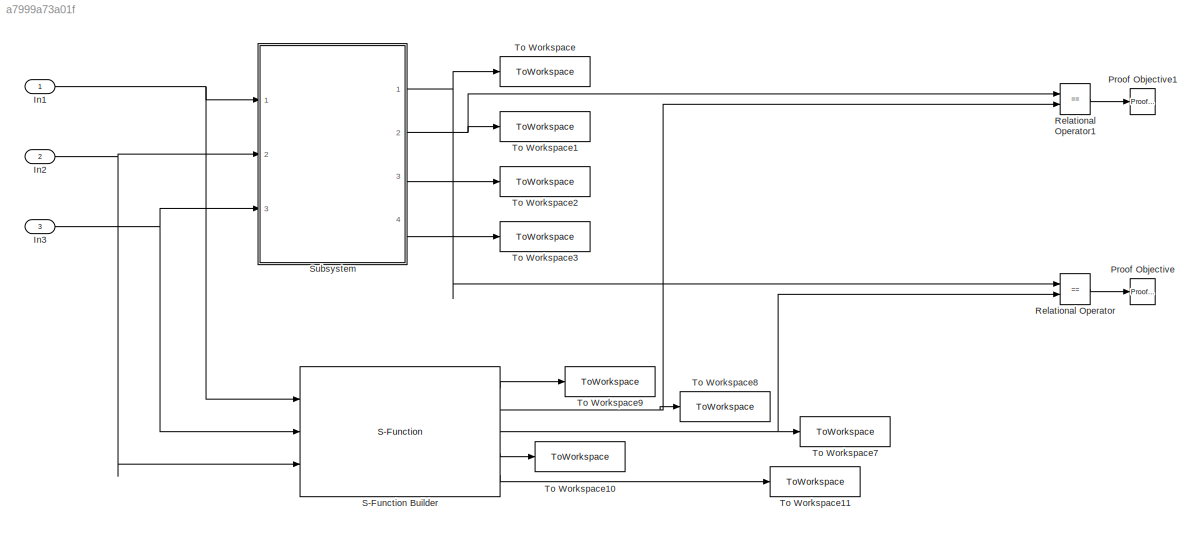
MODEL slx_a7999a73a01f
KIND model
CONFIG AbsTol = auto
CONFIG EnableMultiTasking = off
CONFIG FixedStep = auto
CONFIG MaxStep = auto
CONFIG MinStep = auto
CONFIG RelTol = 1e-3
CONFIG SampleTimeConstraint = Unconstrained
CONFIG Solver = FixedStepAuto
CONFIG SolverName = FixedStepAuto
CONFIG StartTime = 0.0
CONFIG StopTime = 30
BLOCK [Inport] In1
  IconDisplay = Port number
  OutDataTypeStr = boolean
BLOCK [Inport] In2
  IconDisplay = Port number
  OutDataTypeStr = int32
  OutMax = 4
  OutMin = 1
  Port = 2
BLOCK [Inport] In3
  IconDisplay = Port number
  OutDataTypeStr = int32
  Port = 3
BLOCK [Reference] Proof Objective  REF=sldvlib/Objectives and Constraints/Proof Objective
  AttributesFormatString = %<intervals>
  Ports = [1]
  SourceBlock = sldvlib/Objectives and Constraints/Proof Objective
  SourceProductBaseCode = DV
  SourceProductName = Simulink Design Verifier
  SourceType = Design Verifier Proof Objective
BLOCK [Reference] Proof Objective1  REF=sldvlib/Objectives and Constraints/Proof Objective
  AttributesFormatString = %<intervals>
  Ports = [1]
  SourceBlock = sldvlib/Objectives and Constraints/Proof Objective
  SourceProductBaseCode = DV
  SourceProductName = Simulink Design Verifier
  SourceType = Design Verifier Proof Objective
BLOCK [RelationalOperator] Relational Operator
  InputSameDT = off
  Operator = ==
  OutDataTypeStr = boolean
  Ports = [2, 1]
  RndMeth = Simplest
BLOCK [RelationalOperator] Relational Operator1
  InputSameDT = off
  Operator = ==
  OutDataTypeStr = boolean
  Ports = [2, 1]
  RndMeth = Simplest
BLOCK [S-Function] S-Function Builder
  CopyFcn = set_param(gcbh,'LinkStatus','none')
  EnableBusSupport = off
  FunctionName = arinc_code
  InitFcn = try, set_param(gcb,'FunctionName','arinc_code'), end
  OpenFcn = sfunctionwizard(gcbh)
  Ports = [3, 5]
  PreSaveFcn = try, set_param(gcb,'FunctionName','arinc_code'), end
  SFcnIsStateOwnerBlock = off
  SFunctionDeploymentMode = off
  SFunctionModules = arinc_code_wrapper
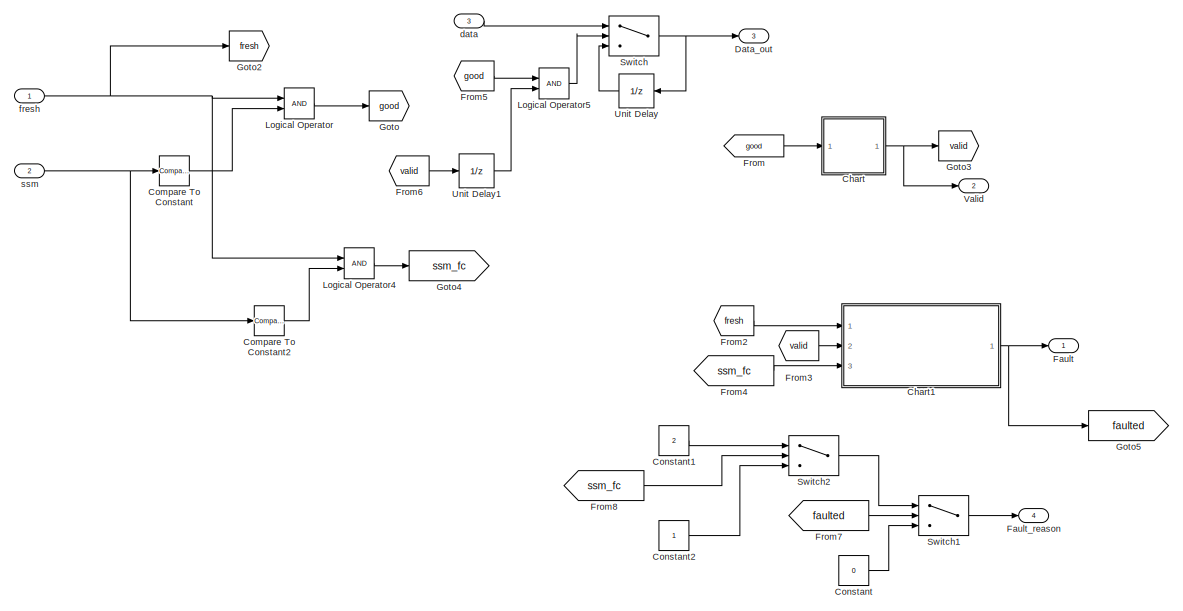
[diagram: Subsystem - part 1/2, full width, top band]
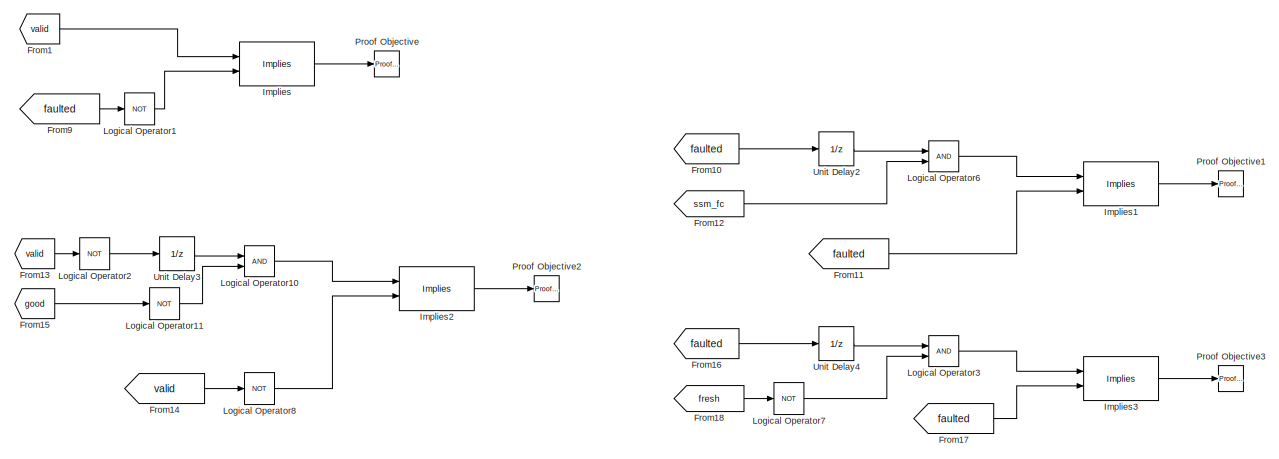
[diagram: Subsystem - part 2/2, full width, bottom band]
BLOCK [SubSystem] Subsystem
  Ports = [3, 4]
  RequestExecContextInheritance = off
  TreatAsAtomicUnit = on
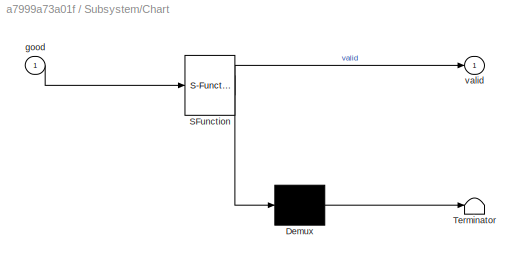
BLOCK [SubSystem] Subsystem/Chart
  ErrorFcn = Stateflow.Translate.translate
  PermitHierarchicalResolution = ExplicitOnly
  Ports = [1, 1]
  RequestExecContextInheritance = off
  SFBlockType = Chart
  TreatAsAtomicUnit = on
BLOCK [Demux] Subsystem/Chart/ Demux 
  Outputs = 1
  Ports = [1, 1]
BLOCK [S-Function] Subsystem/Chart/ SFunction 
  EnableBusSupport = on
  FunctionName = sf_sfun
  PortCounts = [1 2]
  Ports = [1, 2]
  SFcnIsStateOwnerBlock = off
  SFunctionDeploymentMode = off
  Tag = Stateflow S-Function arinc 3
BLOCK [Terminator] Subsystem/Chart/ Terminator 
BLOCK [Inport] Subsystem/Chart/good
  IconDisplay = Port number
BLOCK [Outport] Subsystem/Chart/valid
  IconDisplay = Port number
  VectorParamsAs1DForOutWhenUnconnected = on
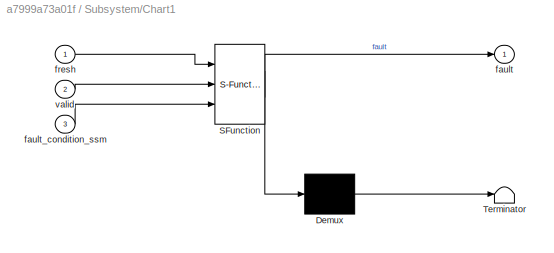
BLOCK [SubSystem] Subsystem/Chart1
  ErrorFcn = Stateflow.Translate.translate
  PermitHierarchicalResolution = ExplicitOnly
  Ports = [3, 1]
  RequestExecContextInheritance = off
  SFBlockType = Chart
  TreatAsAtomicUnit = on
BLOCK [Demux] Subsystem/Chart1/ Demux 
  Outputs = 1
  Ports = [1, 1]
BLOCK [S-Function] Subsystem/Chart1/ SFunction 
  EnableBusSupport = on
  FunctionName = sf_sfun
  PortCounts = [3 2]
  Ports = [3, 2]
  SFcnIsStateOwnerBlock = off
  SFunctionDeploymentMode = off
  Tag = Stateflow S-Function arinc 1
BLOCK [Terminator] Subsystem/Chart1/ Terminator 
BLOCK [Outport] Subsystem/Chart1/fault
  IconDisplay = Port number
  VectorParamsAs1DForOutWhenUnconnected = on
BLOCK [Inport] Subsystem/Chart1/fault_condition_ssm
  IconDisplay = Port number
  Port = 3
BLOCK [Inport] Subsystem/Chart1/fresh
  IconDisplay = Port number
BLOCK [Inport] Subsystem/Chart1/valid
  IconDisplay = Port number
  Port = 2
BLOCK [Reference] Subsystem/Compare To Constant  REF=simulink/Logic and Bit
Operations/Compare
To Constant
  Ports = [1, 1]
  SourceBlock = simulink/Logic and Bit\nOperations/Compare\nTo Constant
  SourceProductBaseCode = SL
  SourceProductName = Simulink
  SourceType = Compare To Constant
BLOCK [Reference] Subsystem/Compare To Constant2  REF=simulink/Logic and Bit
Operations/Compare
To Constant
  Ports = [1, 1]
  SourceBlock = simulink/Logic and Bit\nOperations/Compare\nTo Constant
  SourceProductBaseCode = SL
  SourceProductName = Simulink
  SourceType = Compare To Constant
BLOCK [Constant] Subsystem/Constant
  OutDataTypeStr = int32
  Value = 0
BLOCK [Constant] Subsystem/Constant1
  OutDataTypeStr = int32
  Value = 2
BLOCK [Constant] Subsystem/Constant2
  OutDataTypeStr = int32
BLOCK [Outport] Subsystem/Data_out 
  IconDisplay = Port number
  Port = 3
  VectorParamsAs1DForOutWhenUnconnected = on
BLOCK [Outport] Subsystem/Fault
  IconDisplay = Port number
  VectorParamsAs1DForOutWhenUnconnected = on
BLOCK [Outport] Subsystem/Fault_reason
  IconDisplay = Port number
  Port = 4
  VectorParamsAs1DForOutWhenUnconnected = on
BLOCK [From] Subsystem/From
  GotoTag = good
BLOCK [From] Subsystem/From1
  GotoTag = valid
BLOCK [From] Subsystem/From10
  GotoTag = faulted
BLOCK [From] Subsystem/From11
  GotoTag = faulted
BLOCK [From] Subsystem/From12
  GotoTag = ssm_fc
BLOCK [From] Subsystem/From13
  GotoTag = valid
BLOCK [From] Subsystem/From14
  GotoTag = valid
BLOCK [From] Subsystem/From15
  GotoTag = good
BLOCK [From] Subsystem/From16
  GotoTag = faulted
BLOCK [From] Subsystem/From17
  GotoTag = faulted
BLOCK [From] Subsystem/From18
  GotoTag = fresh
BLOCK [From] Subsystem/From2
  GotoTag = fresh
BLOCK [From] Subsystem/From3
  GotoTag = valid
BLOCK [From] Subsystem/From4
  GotoTag = ssm_fc
BLOCK [From] Subsystem/From5
  GotoTag = good
BLOCK [From] Subsystem/From6
  GotoTag = valid
BLOCK [From] Subsystem/From7
  GotoTag = faulted
BLOCK [From] Subsystem/From8
  GotoTag = ssm_fc
BLOCK [From] Subsystem/From9
  GotoTag = faulted
BLOCK [Goto] Subsystem/Goto
  GotoTag = good
BLOCK [Goto] Subsystem/Goto2
  GotoTag = fresh
BLOCK [Goto] Subsystem/Goto3
  GotoTag = valid
BLOCK [Goto] Subsystem/Goto4
  GotoTag = ssm_fc
BLOCK [Goto] Subsystem/Goto5
  GotoTag = faulted
BLOCK [Reference] Subsystem/Implies  REF=sldvlib/Verification Utilities/Implies
  Ports = [2, 1]
  SourceBlock = sldvlib/Verification Utilities/Implies
  SourceProductBaseCode = SL
  SourceProductName = Simulink
  SourceType = Design Verifier Implies
BLOCK [Reference] Subsystem/Implies1  REF=sldvlib/Verification Utilities/Implies
  Ports = [2, 1]
  SourceBlock = sldvlib/Verification Utilities/Implies
  SourceProductBaseCode = SL
  SourceProductName = Simulink
  SourceType = Design Verifier Implies
BLOCK [Reference] Subsystem/Implies2  REF=sldvlib/Verification Utilities/Implies
  Ports = [2, 1]
  SourceBlock = sldvlib/Verification Utilities/Implies
  SourceProductBaseCode = SL
  SourceProductName = Simulink
  SourceType = Design Verifier Implies
BLOCK [Reference] Subsystem/Implies3  REF=sldvlib/Verification Utilities/Implies
  Ports = [2, 1]
  SourceBlock = sldvlib/Verification Utilities/Implies
  SourceProductBaseCode = SL
  SourceProductName = Simulink
  SourceType = Design Verifier Implies
BLOCK [Logic] Subsystem/Logical Operator
  AllPortsSameDT = off
  OutDataTypeStr = boolean
  Ports = [2, 1]
BLOCK [Logic] Subsystem/Logical Operator1
  AllPortsSameDT = off
  Inputs = 1
  Operator = NOT
  OutDataTypeStr = boolean
  Ports = [1, 1]
BLOCK [Logic] Subsystem/Logical Operator10
  AllPortsSameDT = off
  OutDataTypeStr = boolean
  Ports = [2, 1]
BLOCK [Logic] Subsystem/Logical Operator11
  AllPortsSameDT = off
  Inputs = 1
  Operator = NOT
  OutDataTypeStr = boolean
  Ports = [1, 1]
BLOCK [Logic] Subsystem/Logical Operator2
  AllPortsSameDT = off
  Inputs = 1
  Operator = NOT
  OutDataTypeStr = boolean
  Ports = [1, 1]
BLOCK [Logic] Subsystem/Logical Operator3
  AllPortsSameDT = off
  OutDataTypeStr = boolean
  Ports = [2, 1]
BLOCK [Logic] Subsystem/Logical Operator4
  AllPortsSameDT = off
  OutDataTypeStr = boolean
  Ports = [2, 1]
BLOCK [Logic] Subsystem/Logical Operator5
  AllPortsSameDT = off
  OutDataTypeStr = boolean
  Ports = [2, 1]
BLOCK [Logic] Subsystem/Logical Operator6
  AllPortsSameDT = off
  OutDataTypeStr = boolean
  Ports = [2, 1]
BLOCK [Logic] Subsystem/Logical Operator7
  AllPortsSameDT = off
  Inputs = 1
  Operator = NOT
  OutDataTypeStr = boolean
  Ports = [1, 1]
BLOCK [Logic] Subsystem/Logical Operator8
  AllPortsSameDT = off
  Inputs = 1
  Operator = NOT
  OutDataTypeStr = boolean
  Ports = [1, 1]
BLOCK [Reference] Subsystem/Proof Objective  REF=sldvlib/Objectives and Constraints/Proof Objective
  AttributesFormatString = %<intervals>
  Commented = on
  Ports = [1]
  SourceBlock = sldvlib/Objectives and Constraints/Proof Objective
  SourceProductBaseCode = SL
  SourceProductName = Simulink
  SourceType = Design Verifier Proof Objective
BLOCK [Reference] Subsystem/Proof Objective1  REF=sldvlib/Objectives and Constraints/Proof Objective
  AttributesFormatString = %<intervals>
  Commented = on
  Ports = [1]
  SourceBlock = sldvlib/Objectives and Constraints/Proof Objective
  SourceProductBaseCode = SL
  SourceProductName = Simulink
  SourceType = Design Verifier Proof Objective
BLOCK [Reference] Subsystem/Proof Objective2  REF=sldvlib/Objectives and Constraints/Proof Objective
  AttributesFormatString = %<intervals>
  Commented = on
  Ports = [1]
  SourceBlock = sldvlib/Objectives and Constraints/Proof Objective
  SourceProductBaseCode = SL
  SourceProductName = Simulink
  SourceType = Design Verifier Proof Objective
BLOCK [Reference] Subsystem/Proof Objective3  REF=sldvlib/Objectives and Constraints/Proof Objective
  AttributesFormatString = %<intervals>
  Commented = on
  Ports = [1]
  SourceBlock = sldvlib/Objectives and Constraints/Proof Objective
  SourceProductBaseCode = SL
  SourceProductName = Simulink
  SourceType = Design Verifier Proof Objective
BLOCK [Switch] Subsystem/Switch
  Criteria = u2 ~= 0
  InputSameDT = off
  SaturateOnIntegerOverflow = off
BLOCK [Switch] Subsystem/Switch1
  Criteria = u2 ~= 0
  InputSameDT = off
  SaturateOnIntegerOverflow = off
BLOCK [Switch] Subsystem/Switch2
  Criteria = u2 ~= 0
  InputSameDT = off
  SaturateOnIntegerOverflow = off
BLOCK [UnitDelay] Subsystem/Unit Delay
  InputProcessing = Elements as channels (sample based)
  SampleTime = -1
BLOCK [UnitDelay] Subsystem/Unit Delay1
  InputProcessing = Elements as channels (sample based)
  SampleTime = -1
BLOCK [UnitDelay] Subsystem/Unit Delay2
  InputProcessing = Elements as channels (sample based)
  SampleTime = -1
BLOCK [UnitDelay] Subsystem/Unit Delay3
  InputProcessing = Elements as channels (sample based)
  SampleTime = -1
BLOCK [UnitDelay] Subsystem/Unit Delay4
  InputProcessing = Elements as channels (sample based)
  SampleTime = -1
BLOCK [Outport] Subsystem/Valid
  IconDisplay = Port number
  Port = 2
  VectorParamsAs1DForOutWhenUnconnected = on
BLOCK [Inport] Subsystem/data
  IconDisplay = Port number
  Port = 3
BLOCK [Inport] Subsystem/fresh
  IconDisplay = Port number
BLOCK [Inport] Subsystem/ssm
  IconDisplay = Port number
  Port = 2
BLOCK [ToWorkspace] To Workspace
  MaxDataPoints = inf
  Ports = [1]
  SampleTime = -1
  Save2DSignal = 2-D array (concatenate along first dimension)
  VariableName = fault
BLOCK [ToWorkspace] To Workspace1
  MaxDataPoints = inf
  Ports = [1]
  SampleTime = -1
  Save2DSignal = 2-D array (concatenate along first dimension)
  VariableName = valid
BLOCK [ToWorkspace] To Workspace10
  MaxDataPoints = inf
  Ports = [1]
  SampleTime = -1
  Save2DSignal = 2-D array (concatenate along first dimension)
  VariableName = state_v
BLOCK [ToWorkspace] To Workspace11
  MaxDataPoints = inf
  Ports = [1]
  SampleTime = -1
  Save2DSignal = 2-D array (concatenate along first dimension)
  VariableName = state_f
BLOCK [ToWorkspace] To Workspace2
  MaxDataPoints = inf
  Ports = [1]
  SampleTime = -1
  Save2DSignal = 2-D array (concatenate along first dimension)
  VariableName = d_out
BLOCK [ToWorkspace] To Workspace3
  MaxDataPoints = inf
  Ports = [1]
  SampleTime = -1
  Save2DSignal = 2-D array (concatenate along first dimension)
  VariableName = reason
BLOCK [ToWorkspace] To Workspace7
  MaxDataPoints = inf
  Ports = [1]
  SampleTime = -1
  Save2DSignal = 2-D array (concatenate along first dimension)
  VariableName = fault1
BLOCK [ToWorkspace] To Workspace8
  MaxDataPoints = inf
  Ports = [1]
  SampleTime = -1
  Save2DSignal = 2-D array (concatenate along first dimension)
  VariableName = valid1
BLOCK [ToWorkspace] To Workspace9
  MaxDataPoints = inf
  Ports = [1]
  SampleTime = -1
  Save2DSignal = 2-D array (concatenate along first dimension)
  VariableName = d_out1
NET In1:1 -> S-Function Builder:1, Subsystem:1
NET In2:1 -> S-Function Builder:3, Subsystem:2
NET In3:1 -> S-Function Builder:2, Subsystem:3
LINE Relational Operator1:1 -> Proof Objective1:1
LINE Relational Operator:1 -> Proof Objective:1
LINE S-Function Builder:1 -> To Workspace9:1
NET S-Function Builder:2 -> Relational Operator1:2, To Workspace8:1
NET S-Function Builder:3 -> Relational Operator:2, To Workspace7:1
LINE S-Function Builder:4 -> To Workspace10:1
LINE S-Function Builder:5 -> To Workspace11:1
NET Subsystem/Chart1:1 -> Subsystem/Fault:1, Subsystem/Goto5:1
NET Subsystem/Chart:1 -> Subsystem/Goto3:1, Subsystem/Valid:1
LINE Subsystem/Compare To Constant2:1 -> Subsystem/Logical Operator4:2
LINE Subsystem/Compare To Constant:1 -> Subsystem/Logical Operator:2
LINE Subsystem/Constant1:1 -> Subsystem/Switch2:1
LINE Subsystem/Constant2:1 -> Subsystem/Switch2:3
LINE Subsystem/Constant:1 -> Subsystem/Switch1:3
LINE Subsystem/From10:1 -> Subsystem/Unit Delay2:1
LINE Subsystem/From11:1 -> Subsystem/Implies1:2
LINE Subsystem/From12:1 -> Subsystem/Logical Operator6:2
LINE Subsystem/From13:1 -> Subsystem/Logical Operator2:1
LINE Subsystem/From14:1 -> Subsystem/Logical Operator8:1
LINE Subsystem/From15:1 -> Subsystem/Logical Operator11:1
LINE Subsystem/From16:1 -> Subsystem/Unit Delay4:1
LINE Subsystem/From17:1 -> Subsystem/Implies3:2
LINE Subsystem/From18:1 -> Subsystem/Logical Operator7:1
LINE Subsystem/From1:1 -> Subsystem/Implies:1
LINE Subsystem/From2:1 -> Subsystem/Chart1:1
LINE Subsystem/From3:1 -> Subsystem/Chart1:2
LINE Subsystem/From4:1 -> Subsystem/Chart1:3
LINE Subsystem/From5:1 -> Subsystem/Logical Operator5:1
LINE Subsystem/From6:1 -> Subsystem/Unit Delay1:1
LINE Subsystem/From7:1 -> Subsystem/Switch1:2
LINE Subsystem/From8:1 -> Subsystem/Switch2:2
LINE Subsystem/From9:1 -> Subsystem/Logical Operator1:1
LINE Subsystem/From:1 -> Subsystem/Chart:1
LINE Subsystem/Implies1:1 -> Subsystem/Proof Objective1:1
LINE Subsystem/Implies2:1 -> Subsystem/Proof Objective2:1
LINE Subsystem/Implies3:1 -> Subsystem/Proof Objective3:1
LINE Subsystem/Implies:1 -> Subsystem/Proof Objective:1
LINE Subsystem/Logical Operator10:1 -> Subsystem/Implies2:1
LINE Subsystem/Logical Operator11:1 -> Subsystem/Logical Operator10:2
LINE Subsystem/Logical Operator1:1 -> Subsystem/Implies:2
LINE Subsystem/Logical Operator2:1 -> Subsystem/Unit Delay3:1
LINE Subsystem/Logical Operator3:1 -> Subsystem/Implies3:1
LINE Subsystem/Logical Operator4:1 -> Subsystem/Goto4:1
LINE Subsystem/Logical Operator5:1 -> Subsystem/Switch:2
LINE Subsystem/Logical Operator6:1 -> Subsystem/Implies1:1
LINE Subsystem/Logical Operator7:1 -> Subsystem/Logical Operator3:2
LINE Subsystem/Logical Operator8:1 -> Subsystem/Implies2:2
LINE Subsystem/Logical Operator:1 -> Subsystem/Goto:1
LINE Subsystem/Switch1:1 -> Subsystem/Fault_reason:1
LINE Subsystem/Switch2:1 -> Subsystem/Switch1:1
NET Subsystem/Switch:1 -> Subsystem/Data_out :1, Subsystem/Unit Delay:1
LINE Subsystem/Unit Delay1:1 -> Subsystem/Logical Operator5:2
LINE Subsystem/Unit Delay2:1 -> Subsystem/Logical Operator6:1
LINE Subsystem/Unit Delay3:1 -> Subsystem/Logical Operator10:1
LINE Subsystem/Unit Delay4:1 -> Subsystem/Logical Operator3:1
LINE Subsystem/Unit Delay:1 -> Subsystem/Switch:3
LINE Subsystem/data:1 -> Subsystem/Switch:1
NET Subsystem/fresh:1 -> Subsystem/Goto2:1, Subsystem/Logical Operator4:1, Subsystem/Logical Operator:1
NET Subsystem/ssm:1 -> Subsystem/Compare To Constant2:1, Subsystem/Compare To Constant:1
NET Subsystem:1 -> Relational Operator:1, To Workspace:1
NET Subsystem:2 -> Relational Operator1:1, To Workspace1:1
LINE Subsystem:3 -> To Workspace2:1
LINE Subsystem:4 -> To Workspace3:1
note: NET lines group one-source signal fan-out (src -> all destinations, sorted); 1:1 wires keep LINE
CHART Subsystem/Chart1 states=5 transitions=12
  STATE_LABEL 'count_to_fault\n\nentry:\ncountf = 1;\nduring:\ncountf = countf+1;'
  STATE_LABEL 'Init\nfault = false;\ncountf = 0;'
  STATE_LABEL 'fault_set\n\nentry:\nfault = true;\ncountf = 0;'
  STATE_LABEL 'count_to_health\n\nentry:\ncountf = 1;\nduring:\ncountf = countf+1;'
  STATE_LABEL 'health_set\n\nentry:\nfault = false;\ncountf = 0;\n'
CHART Subsystem/Chart states=5 transitions=9
  STATE_LABEL 'bad\nentry:\ncountv = int32(1);\nduring:\ncountv = countv+1;'
  STATE_LABEL 'init\nentry:\nvalid = false;\ncountv = int32(0);\n'
  STATE_LABEL 'invalid\nentry:\nvalid = false;\ncountv = int32(0);'
  STATE_LABEL 'good\nentry:\ncountv = int32(1);\nduring:\ncountv = countv+1;'
  STATE_LABEL 'validity\nentry:\nvalid = true;\ncountv = int32(0);'
